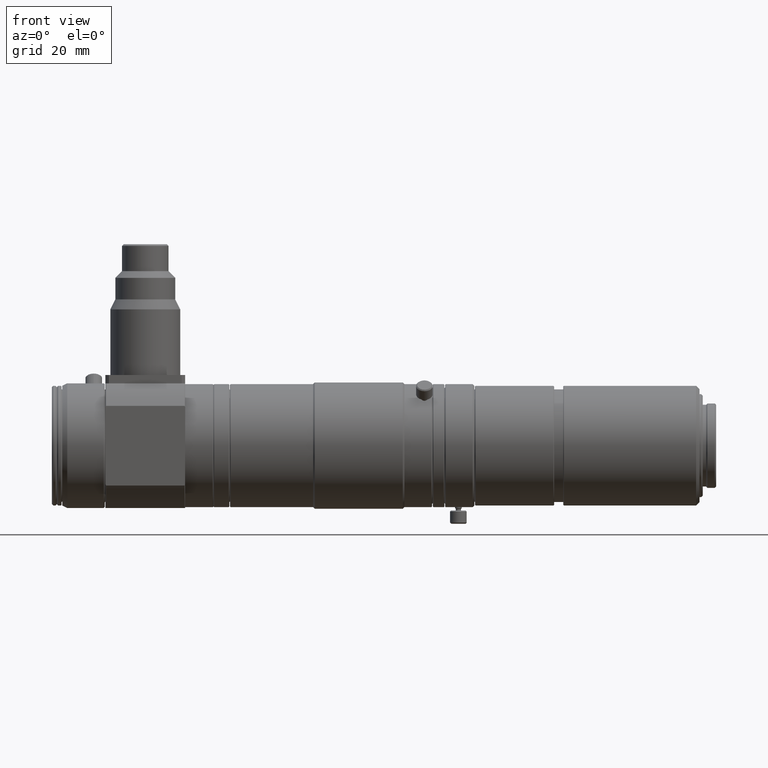
[diagram: clean part render]
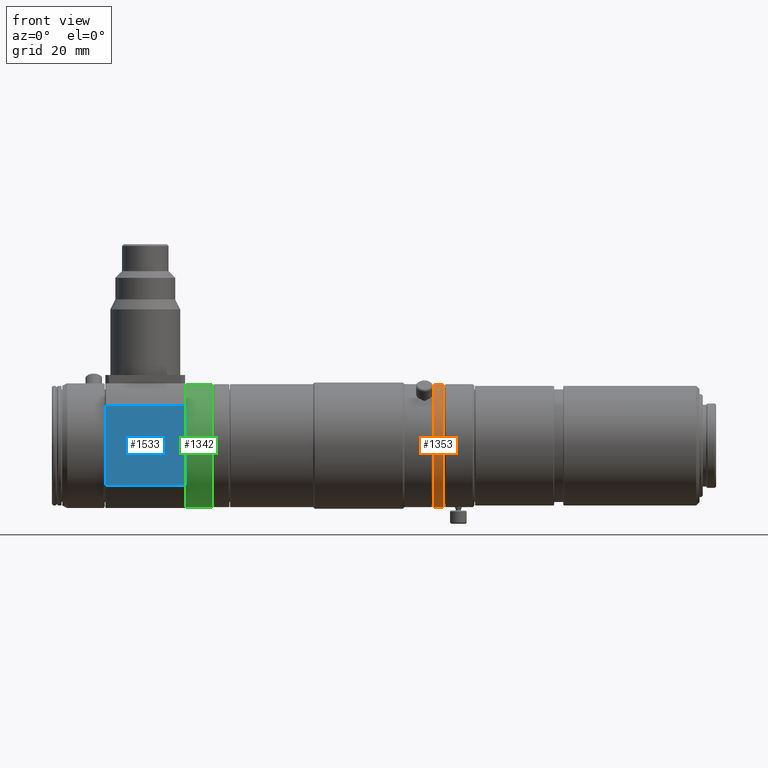
[diagram: same view with three faces highlighted in distinct colors, each labeled with its STEP entity id]
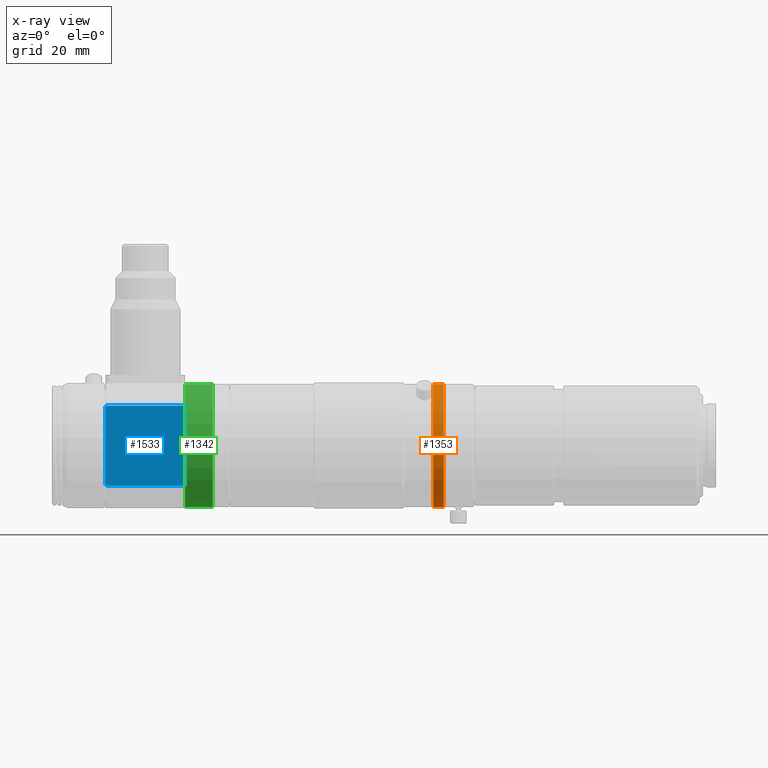
[diagram: x-ray of the same camera — body ghosted, the three highlighted faces saturated]
A machine part, front view with three faces highlighted in distinct colors.
The next image is the same camera in x-ray (body ghosted, the three faces saturated) — at least one of them is partly hidden behind the body in this view.
Their STEP definitions:

[orange] entity #1353 — the highlighted cylindrical surface (partial cylindrical patch) has radius 18.5 mm, axis along (1, -0, -0).
#610 = CARTESIAN_POINT ( 'NONE',  ( -95.47219436237685400, 0.0000000000000000000, 0.0000000000000000000 ) ) ;
#611 = DIRECTION ( 'NONE',  ( 1.000000000000000000, -0.0000000000000000000, -0.0000000000000000000 ) ) ;
#612 = DIRECTION ( 'NONE',  ( 0.0000000000000000000, 0.0000000000000000000, -1.000000000000000000 ) ) ;
#613 = CARTESIAN_POINT ( 'NONE',  ( -98.57219436237684800, 0.0000000000000000000, 0.0000000000000000000 ) ) ;
#614 = DIRECTION ( 'NONE',  ( 1.000000000000000000, -0.0000000000000000000, -0.0000000000000000000 ) ) ;
#615 = DIRECTION ( 'NONE',  ( 0.0000000000000000000, 0.0000000000000000000, -1.000000000000000000 ) ) ;
#1086 = CARTESIAN_POINT ( 'NONE',  ( 0.0000000000000000000, 0.0000000000000000000, 0.0000000000000000000 ) ) ;
#1104 = DIRECTION ( 'NONE',  ( 0.0000000000000000000, 0.0000000000000000000, -1.000000000000000000 ) ) ;
#1106 = DIRECTION ( 'NONE',  ( 1.000000000000000000, -0.0000000000000000000, -0.0000000000000000000 ) ) ;
#1353 = ADVANCED_FACE ( 'NONE', ( #5576 ), #5580, .T. ) ;
#1715 = EDGE_CURVE ( 'NONE', #5472, #5370, #6085, .T. ) ;
#1833 = EDGE_CURVE ( 'NONE', #5370, #5450, #6588, .T. ) ;
#1834 = EDGE_CURVE ( 'NONE', #5472, #5399, #6589, .T. ) ;
#2630 = CARTESIAN_POINT ( 'NONE',  ( 0.0000000000000000000, 0.0000000000000000000, -18.49999999999988300 ) ) ;
#2631 = DIRECTION ( 'NONE',  ( 1.000000000000000000, -0.0000000000000000000, -0.0000000000000000000 ) ) ;
#3117 = CARTESIAN_POINT ( 'NONE',  ( -95.47219436237685400, 0.0000000000000000000, 18.49999999999987600 ) ) ;
#3146 = CARTESIAN_POINT ( 'NONE',  ( -98.57219436237684800, 0.0000000000000000000, -18.49999999999988600 ) ) ;
#3197 = CARTESIAN_POINT ( 'NONE',  ( -95.47219436237685400, 2.265596578422588000E-015, -18.49999999999987600 ) ) ;
#3219 = CARTESIAN_POINT ( 'NONE',  ( -98.57219436237684800, 2.265596578422590000E-015, 18.49999999999988600 ) ) ;
#3528 = EDGE_CURVE ( 'NONE', #5399, #5450, #7037, .T. ) ;
#4139 = EDGE_LOOP ( 'NONE', ( #5533, #5534, #5527, #5531 ) ) ;
#4563 = AXIS2_PLACEMENT_3D ( 'NONE', #1086, #1106, #1104 ) ;
#5370 = VERTEX_POINT ( 'NONE', #3117 ) ;
#5399 = VERTEX_POINT ( 'NONE', #3146 ) ;
#5450 = VERTEX_POINT ( 'NONE', #3197 ) ;
#5472 = VERTEX_POINT ( 'NONE', #3219 ) ;
#5527 = ORIENTED_EDGE ( 'NONE', *, *, #3528, .T. ) ;
#5531 = ORIENTED_EDGE ( 'NONE', *, *, #1833, .F. ) ;
#5533 = ORIENTED_EDGE ( 'NONE', *, *, #1715, .F. ) ;
#5534 = ORIENTED_EDGE ( 'NONE', *, *, #1834, .T. ) ;
#5576 = FACE_OUTER_BOUND ( 'NONE', #4139, .T. ) ;
#5580 = CYLINDRICAL_SURFACE ( 'NONE', #4563, 18.49999999999988300 ) ;
#6085 = LINE ( 'NONE', #7129, #6091 ) ;
#6091 = VECTOR ( 'NONE', #7126, 1000.000000000000000 ) ;
#6340 = AXIS2_PLACEMENT_3D ( 'NONE', #610, #611, #612 ) ;
#6341 = AXIS2_PLACEMENT_3D ( 'NONE', #613, #614, #615 ) ;
#6588 = CIRCLE ( 'NONE', #6340, 18.49999999999987600 ) ;
#6589 = CIRCLE ( 'NONE', #6341, 18.49999999999988600 ) ;
#7037 = LINE ( 'NONE', #2630, #7040 ) ;
#7040 = VECTOR ( 'NONE', #2631, 1000.000000000000000 ) ;
#7126 = DIRECTION ( 'NONE',  ( 1.000000000000000000, -0.0000000000000000000, -0.0000000000000000000 ) ) ;
#7129 = CARTESIAN_POINT ( 'NONE',  ( 0.0000000000000000000, 2.265596578422588800E-015, 18.49999999999988300 ) ) ;

[blue] entity #1533 — the highlighted planar face has unit normal (0, 1, -0).
#282 = B_SPLINE_CURVE_WITH_KNOTS ( 'NONE', 3,
 ( #518, #512, #513, #519 ),
 .UNSPECIFIED., .F., .F.,
 ( 4, 4 ),
 ( 0.03962527442669814400, 0.04005079744749621300 ),
 .UNSPECIFIED. ) ;
#284 = B_SPLINE_CURVE_WITH_KNOTS ( 'NONE', 3,
 ( #525, #521, #520, #526 ),
 .UNSPECIFIED., .F., .F.,
 ( 4, 4 ),
 ( 0.06443686318200693400, 0.06486646009361088400 ),
 .UNSPECIFIED. ) ;
#286 = B_SPLINE_CURVE_WITH_KNOTS ( 'NONE', 3,
 ( #489, #483, #480, #490 ),
 .UNSPECIFIED., .F., .F.,
 ( 4, 4 ),
 ( 0.06443686318200687900, 0.06486646009361082800 ),
 .UNSPECIFIED. ) ;
#290 = B_SPLINE_CURVE_WITH_KNOTS ( 'NONE', 3,
 ( #504, #499, #500, #505 ),
 .UNSPECIFIED., .F., .F.,
 ( 4, 4 ),
 ( 0.03962527442669814400, 0.04005079744749622000 ),
 .UNSPECIFIED. ) ;
#470 = DIRECTION ( 'NONE',  ( 1.000000000000000000, -0.0000000000000000000, -0.0000000000000000000 ) ) ;
#476 = CARTESIAN_POINT ( 'NONE',  ( 0.0000000000000000000, -18.74999999999989000, -11.97914855071111300 ) ) ;
#480 = CARTESIAN_POINT ( 'NONE',  ( -197.1394335168384700, -18.74999999999989000, -11.85425894103328700 ) ) ;
#483 = CARTESIAN_POINT ( 'NONE',  ( -197.2061085817140100, -18.74999999999989000, -11.72903039145551300 ) ) ;
#489 = CARTESIAN_POINT ( 'NONE',  ( -197.2721943623768400, -18.74999999999989000, -11.60344776348840600 ) ) ;
#490 = CARTESIAN_POINT ( 'NONE',  ( -197.0721943623768500, -18.74999999999989000, -11.97914855071110700 ) ) ;
#499 = CARTESIAN_POINT ( 'NONE',  ( -173.4049177282090000, -18.74999999999989000, -11.85418932644759800 ) ) ;
#500 = CARTESIAN_POINT ( 'NONE',  ( -173.3382428077778500, -18.74999999999989000, -11.72895944335950300 ) ) ;
#504 = CARTESIAN_POINT ( 'NONE',  ( -173.4721943623768500, -18.74999999999989300, -11.97914855071111600 ) ) ;
#505 = CARTESIAN_POINT ( 'NONE',  ( -173.2721943623768700, -18.74999999999988600, -11.60344776348842200 ) ) ;
#506 = CARTESIAN_POINT ( 'NONE',  ( 0.0000000000000000000, -18.74999999999989000, 11.97914855071111300 ) ) ;
#507 = DIRECTION ( 'NONE',  ( -1.000000000000000000, 0.0000000000000000000, 0.0000000000000000000 ) ) ;
#512 = CARTESIAN_POINT ( 'NONE',  ( -197.1394709965447000, -18.74999999999989000, 11.85418932644757800 ) ) ;
#513 = CARTESIAN_POINT ( 'NONE',  ( -197.2061459169758600, -18.74999999999989000, 11.72895944335949800 ) ) ;
#518 = CARTESIAN_POINT ( 'NONE',  ( -197.0721943623768500, -18.74999999999989000, 11.97914855071110700 ) ) ;
#519 = CARTESIAN_POINT ( 'NONE',  ( -197.2721943623768400, -18.74999999999989000, 11.60344776348840600 ) ) ;
#520 = CARTESIAN_POINT ( 'NONE',  ( -173.4049552079152400, -18.74999999999989000, 11.85425894103331000 ) ) ;
#521 = CARTESIAN_POINT ( 'NONE',  ( -173.3382801430397300, -18.74999999999989000, 11.72903039145553300 ) ) ;
#525 = CARTESIAN_POINT ( 'NONE',  ( -173.2721943623768700, -18.74999999999988600, 11.60344776348842200 ) ) ;
#526 = CARTESIAN_POINT ( 'NONE',  ( -173.4721943623768500, -18.74999999999989300, 11.97914855071111600 ) ) ;
#701 = CARTESIAN_POINT ( 'NONE',  ( -173.2721943623768700, -18.74999999999988600, 0.0000000000000000000 ) ) ;
#702 = DIRECTION ( 'NONE',  ( 0.0000000000000000000, 0.0000000000000000000, 1.000000000000000000 ) ) ;
#727 = CARTESIAN_POINT ( 'NONE',  ( -197.2721943623768700, -18.74999999999989000, 0.0000000000000000000 ) ) ;
#728 = DIRECTION ( 'NONE',  ( 0.0000000000000000000, 0.0000000000000000000, -1.000000000000000000 ) ) ;
#1533 = ADVANCED_FACE ( 'NONE', ( #5809 ), #3319, .F. ) ;
#1794 = EDGE_CURVE ( 'NONE', #5465, #5487, #6550, .T. ) ;
#1797 = EDGE_CURVE ( 'NONE', #5502, #5465, #286, .T. ) ;
#1801 = EDGE_CURVE ( 'NONE', #5487, #5419, #290, .T. ) ;
#1802 = EDGE_CURVE ( 'NONE', #5410, #5407, #6555, .T. ) ;
#1806 = EDGE_CURVE ( 'NONE', #5407, #5413, #282, .T. ) ;
#1808 = EDGE_CURVE ( 'NONE', #5501, #5410, #284, .T. ) ;
#1860 = EDGE_CURVE ( 'NONE', #5419, #5501, #6617, .T. ) ;
#1869 = EDGE_CURVE ( 'NONE', #5413, #5502, #6628, .T. ) ;
#3154 = CARTESIAN_POINT ( 'NONE',  ( -197.0721943623768500, -18.74999999999989000, 11.97914855071110700 ) ) ;
#3157 = CARTESIAN_POINT ( 'NONE',  ( -173.4721943623768500, -18.74999999999989300, 11.97914855071111600 ) ) ;
#3160 = CARTESIAN_POINT ( 'NONE',  ( -197.2721943623768400, -18.74999999999989000, 11.60344776348840600 ) ) ;
#3166 = CARTESIAN_POINT ( 'NONE',  ( -173.2721943623768700, -18.74999999999988600, -11.60344776348842200 ) ) ;
#3212 = CARTESIAN_POINT ( 'NONE',  ( -197.0721943623768500, -18.74999999999989000, -11.97914855071110700 ) ) ;
#3234 = CARTESIAN_POINT ( 'NONE',  ( -173.4721943623768500, -18.74999999999989300, -11.97914855071111600 ) ) ;
#3248 = CARTESIAN_POINT ( 'NONE',  ( -173.2721943623768700, -18.74999999999988600, 11.60344776348842200 ) ) ;
#3249 = CARTESIAN_POINT ( 'NONE',  ( -197.2721943623768400, -18.74999999999989000, -11.60344776348840600 ) ) ;
#3270 = DIRECTION ( 'NONE',  ( 0.0000000000000000000, 0.0000000000000000000, 1.000000000000000000 ) ) ;
#3301 = DIRECTION ( 'NONE',  ( 0.0000000000000000000, 1.000000000000000000, -0.0000000000000000000 ) ) ;
#3308 = CARTESIAN_POINT ( 'NONE',  ( -170.5333849357941700, -18.74999999999989000, -283.3184593559853400 ) ) ;
#3319 = PLANE ( 'NONE',  #4680 ) ;
#4137 = EDGE_LOOP ( 'NONE', ( #4998, #4999, #5000, #5001, #5002, #5003, #5004, #5005 ) ) ;
#4680 = AXIS2_PLACEMENT_3D ( 'NONE', #3308, #3301, #3270 ) ;
#4998 = ORIENTED_EDGE ( 'NONE', *, *, #1801, .T. ) ;
#4999 = ORIENTED_EDGE ( 'NONE', *, *, #1860, .T. ) ;
#5000 = ORIENTED_EDGE ( 'NONE', *, *, #1808, .T. ) ;
#5001 = ORIENTED_EDGE ( 'NONE', *, *, #1802, .T. ) ;
#5002 = ORIENTED_EDGE ( 'NONE', *, *, #1806, .T. ) ;
#5003 = ORIENTED_EDGE ( 'NONE', *, *, #1869, .T. ) ;
#5004 = ORIENTED_EDGE ( 'NONE', *, *, #1797, .T. ) ;
#5005 = ORIENTED_EDGE ( 'NONE', *, *, #1794, .T. ) ;
#5407 = VERTEX_POINT ( 'NONE', #3154 ) ;
#5410 = VERTEX_POINT ( 'NONE', #3157 ) ;
#5413 = VERTEX_POINT ( 'NONE', #3160 ) ;
#5419 = VERTEX_POINT ( 'NONE', #3166 ) ;
#5465 = VERTEX_POINT ( 'NONE', #3212 ) ;
#5487 = VERTEX_POINT ( 'NONE', #3234 ) ;
#5501 = VERTEX_POINT ( 'NONE', #3248 ) ;
#5502 = VERTEX_POINT ( 'NONE', #3249 ) ;
#5809 = FACE_OUTER_BOUND ( 'NONE', #4137, .T. ) ;
#6550 = LINE ( 'NONE', #476, #6554 ) ;
#6554 = VECTOR ( 'NONE', #470, 1000.000000000000000 ) ;
#6555 = LINE ( 'NONE', #506, #6558 ) ;
#6558 = VECTOR ( 'NONE', #507, 1000.000000000000000 ) ;
#6617 = LINE ( 'NONE', #701, #6620 ) ;
#6620 = VECTOR ( 'NONE', #702, 1000.000000000000000 ) ;
#6628 = LINE ( 'NONE', #727, #6630 ) ;
#6630 = VECTOR ( 'NONE', #728, 1000.000000000000000 ) ;

[green] entity #1342 — the highlighted cylindrical surface (partial cylindrical patch) has radius 18.5 mm, axis along (1, -0, -0).
#684 = CARTESIAN_POINT ( 'NONE',  ( -164.9721943623768500, 0.0000000000000000000, 0.0000000000000000000 ) ) ;
#685 = DIRECTION ( 'NONE',  ( 1.000000000000000000, -0.0000000000000000000, -0.0000000000000000000 ) ) ;
#686 = DIRECTION ( 'NONE',  ( 0.0000000000000000000, 0.0000000000000000000, -1.000000000000000000 ) ) ;
#689 = CARTESIAN_POINT ( 'NONE',  ( -173.2721943623768700, 0.0000000000000000000, 0.0000000000000000000 ) ) ;
#690 = DIRECTION ( 'NONE',  ( 1.000000000000000000, -0.0000000000000000000, -0.0000000000000000000 ) ) ;
#691 = DIRECTION ( 'NONE',  ( 0.0000000000000000000, 0.0000000000000000000, -1.000000000000000000 ) ) ;
#1047 = CARTESIAN_POINT ( 'NONE',  ( 0.0000000000000000000, 0.0000000000000000000, 0.0000000000000000000 ) ) ;
#1051 = DIRECTION ( 'NONE',  ( 1.000000000000000000, -0.0000000000000000000, -0.0000000000000000000 ) ) ;
#1115 = DIRECTION ( 'NONE',  ( 0.0000000000000000000, 0.0000000000000000000, -1.000000000000000000 ) ) ;
#1342 = ADVANCED_FACE ( 'NONE', ( #5551 ), #5561, .T. ) ;
#1853 = EDGE_CURVE ( 'NONE', #5403, #5441, #6606, .T. ) ;
#1854 = EDGE_CURVE ( 'NONE', #5384, #5342, #6607, .T. ) ;
#2711 = DIRECTION ( 'NONE',  ( 1.000000000000000000, -0.0000000000000000000, -0.0000000000000000000 ) ) ;
#2714 = CARTESIAN_POINT ( 'NONE',  ( 0.0000000000000000000, 0.0000000000000000000, -18.49999999999985800 ) ) ;
#2716 = CARTESIAN_POINT ( 'NONE',  ( 0.0000000000000000000, 2.265596578422586000E-015, 18.49999999999985800 ) ) ;
#2717 = DIRECTION ( 'NONE',  ( 1.000000000000000000, -0.0000000000000000000, -0.0000000000000000000 ) ) ;
#3089 = CARTESIAN_POINT ( 'NONE',  ( -173.2721943623768700, 0.0000000000000000000, -18.49999999999985800 ) ) ;
#3131 = CARTESIAN_POINT ( 'NONE',  ( -173.2721943623768700, 2.265596578422586000E-015, 18.49999999999985800 ) ) ;
#3150 = CARTESIAN_POINT ( 'NONE',  ( -164.9721943623768500, 0.0000000000000000000, 18.49999999999985800 ) ) ;
#3188 = CARTESIAN_POINT ( 'NONE',  ( -164.9721943623768500, 2.265596578422586000E-015, -18.49999999999985800 ) ) ;
#3565 = EDGE_CURVE ( 'NONE', #5342, #5441, #7455, .T. ) ;
#3567 = EDGE_CURVE ( 'NONE', #5384, #5403, #7458, .T. ) ;
#3644 = ORIENTED_EDGE ( 'NONE', *, *, #1854, .T. ) ;
#3645 = ORIENTED_EDGE ( 'NONE', *, *, #3567, .F. ) ;
#4163 = EDGE_LOOP ( 'NONE', ( #3645, #3644, #5025, #5028 ) ) ;
#4551 = AXIS2_PLACEMENT_3D ( 'NONE', #1047, #1051, #1115 ) ;
#5025 = ORIENTED_EDGE ( 'NONE', *, *, #3565, .T. ) ;
#5028 = ORIENTED_EDGE ( 'NONE', *, *, #1853, .F. ) ;
#5342 = VERTEX_POINT ( 'NONE', #3089 ) ;
#5384 = VERTEX_POINT ( 'NONE', #3131 ) ;
#5403 = VERTEX_POINT ( 'NONE', #3150 ) ;
#5441 = VERTEX_POINT ( 'NONE', #3188 ) ;
#5551 = FACE_OUTER_BOUND ( 'NONE', #4163, .T. ) ;
#5561 = CYLINDRICAL_SURFACE ( 'NONE', #4551, 18.49999999999985800 ) ;
#6359 = AXIS2_PLACEMENT_3D ( 'NONE', #684, #685, #686 ) ;
#6360 = AXIS2_PLACEMENT_3D ( 'NONE', #689, #690, #691 ) ;
#6606 = CIRCLE ( 'NONE', #6359, 18.49999999999985800 ) ;
#6607 = CIRCLE ( 'NONE', #6360, 18.49999999999985800 ) ;
#7455 = LINE ( 'NONE', #2714, #7457 ) ;
#7457 = VECTOR ( 'NONE', #2711, 1000.000000000000000 ) ;
#7458 = LINE ( 'NONE', #2716, #7460 ) ;
#7460 = VECTOR ( 'NONE', #2717, 1000.000000000000000 ) ;